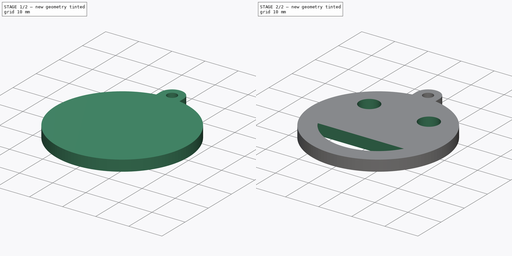
[diagram: build sequence overview — one tinted view per stage of 2, left to right]
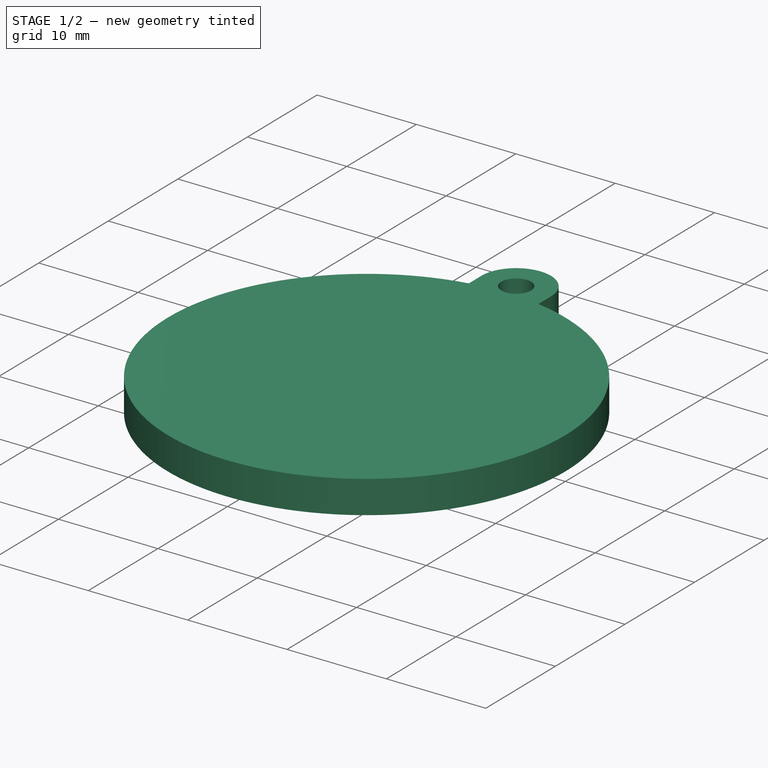
[diagram: stage 1 of 2 — iso view after this stage's code; geometry added in this stage tinted green]
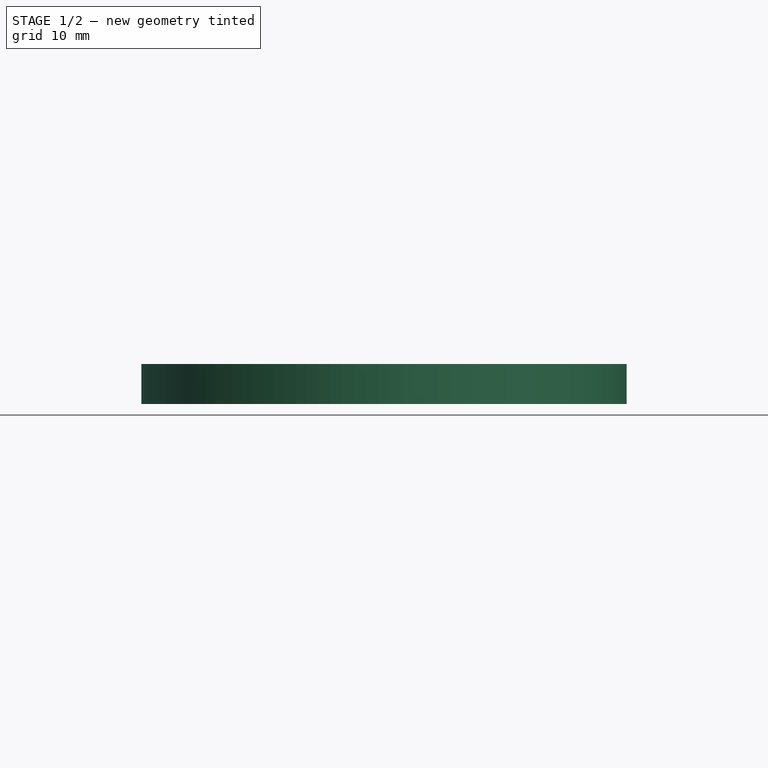
[diagram: stage 1 of 2 — front view after this stage's code; geometry added in this stage tinted green]
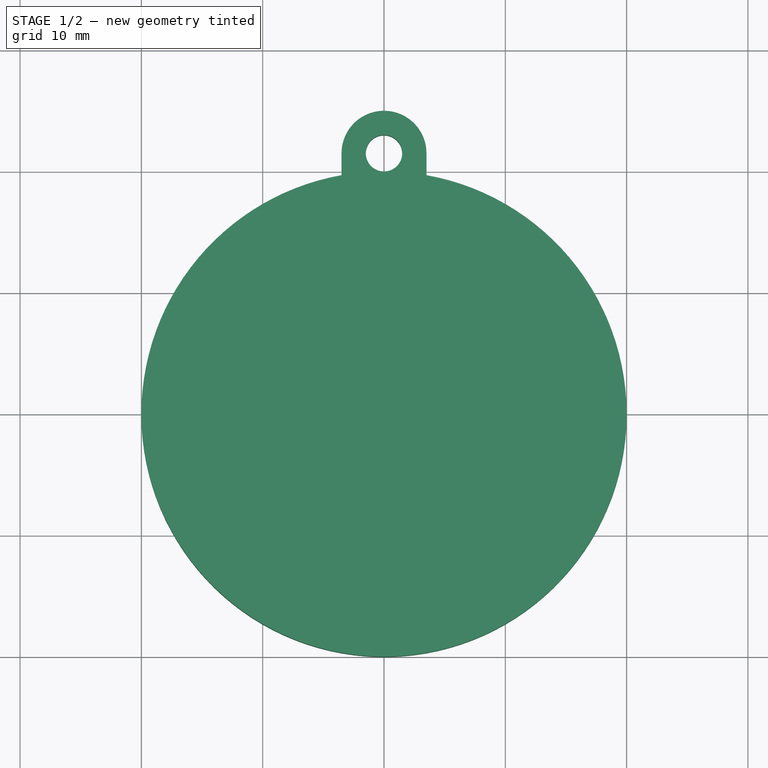
[diagram: stage 1 of 2 — top view after this stage's code; geometry added in this stage tinted green]
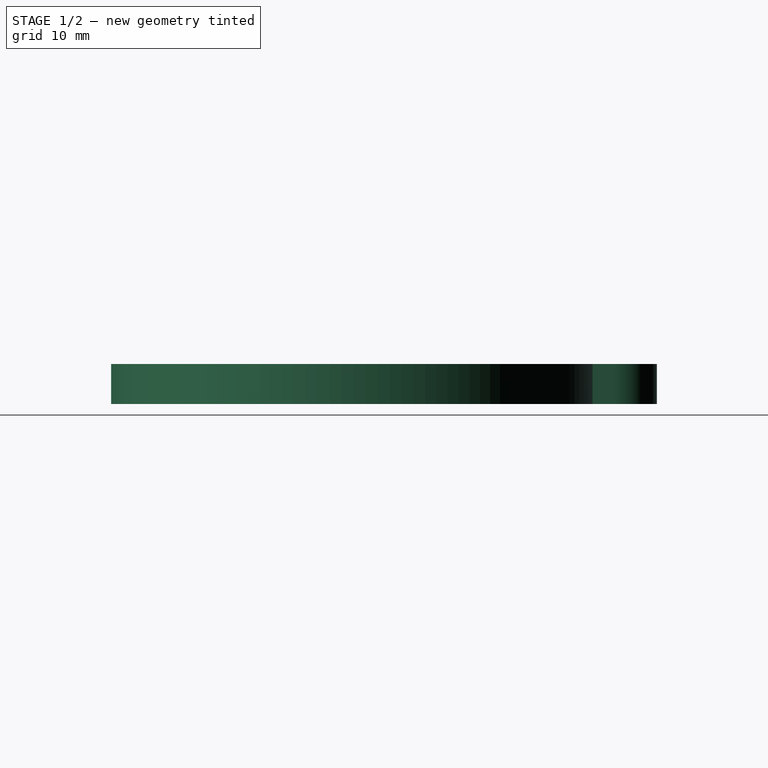
[diagram: stage 1 of 2 — right view after this stage's code; geometry added in this stage tinted green]
FCSTD DOCUMENT  (FreeCAD 0.16R6707 (Git))
Label: T5-ej2
License: CreativeCommons Attribution-ShareAlike
LicenseURL: http://creativecommons.org/licenses/by-sa/4.0/
objects: Sketcher::SketchObject×3, Part::Feature×2, PartDesign::Pocket×2, App::DocumentObjectGroup×2, Part::Extrusion×1, Part::FeaturePython×1
note: 11 computed .brp shape members not serialized (recipe doc carries the construction recipe); baked Part::Feature solids carry a one-line shape summary decoded from their .brp

FEATURE [Part::Feature] Sweep  label="key-ring-model-1"
  Placement = pos=(-1.2,30.2546,1.6391) rot=(0.333333,0.881918,0.333333;1.69612rad)
  shape: bbox 3.31 x 27.02 x 26.33 mm, 4 faces (baked)
FEATURE [Part::Feature] Cut  label="key-model-1"
  Placement = pos=(-5.46976,36.5266,0) rot=(0,0,1;0.517888rad)
  shape: bbox 49.82 x 36.6 x 2.3 mm, 44 faces (baked)
FEATURE [Sketcher::SketchObject] Sketch
  sketch-geometry (7):
    g0: Circle [constr] CenterX=0 CenterY=21.5 CenterZ=0 NormalX=0 NormalY=0 NormalZ=1 Radius=1.5
    g1: LineSegment [constr] StartX=-3.5 StartY=21.5 StartZ=0 EndX=3.5 EndY=21.5 EndZ=0
    g2: ArcOfCircle CenterX=0 CenterY=21.5 CenterZ=0 NormalX=0 NormalY=0 NormalZ=1 Radius=3.5 StartAngle=0 EndAngle=3.14159
    g3: LineSegment StartX=-3.5 StartY=21.5 StartZ=0 EndX=-3.5 EndY=19.6914 EndZ=0
    g4: LineSegment [constr] StartX=-3.5 StartY=19.6914 StartZ=0 EndX=3.5 EndY=19.6914 EndZ=0
    g5: LineSegment StartX=3.5 StartY=19.6914 StartZ=0 EndX=3.5 EndY=21.5 EndZ=0
    g6: ArcOfCircle CenterX=0 CenterY=0 CenterZ=0 NormalX=0 NormalY=0 NormalZ=1 Radius=20 StartAngle=1.7467 EndAngle=7.67808
  constraints (22):
    c: Radius(g0) = 1.5
    c: Horizontal(g1)
    c: Symmetric(g1,g1,g-2)
    c: Coincident(g2,g0)
    c: PointOnObject(g0,g-2)
    c: PointOnObject(g0,g1)
    c: Coincident(g2,g1)
    c: Coincident(g2,g1)
    c: Radius(g2) = 3.5
    c: DistanceY(g-1,g0) = 21.5
    c: Vertical(g3)
    c: Coincident(g3,g4)
    c: Horizontal(g4)
    c: Coincident(g4,g5)
    c: Vertical(g5)
    c: Coincident(g3,g1)
    c: Coincident(g5,g1)
    c: Coincident(g6,g-1)
    c: Radius(g6) = 20
    c: PointOnObject(g3,g6)
    c: PointOnObject(g6,g4)
    c: PointOnObject(g6,g4)
FEATURE [Part::Extrusion] Extrude  label="casino-chip"
  Base = -> Sketch
  Dir = (0,0,3.3)
  Solid = true
FEATURE [Sketcher::SketchObject] Sketch001
  Placement = pos=(0,0,3.3) rot=(0,0,1;0rad)
  Support = -> Extrude [Face6]
  sketch-geometry (1):
    g0: Circle CenterX=0 CenterY=21.5 CenterZ=0 NormalX=0 NormalY=0 NormalZ=1 Radius=1.5
  constraints (3):
    c: DistanceY(g-1,g0) = 21.5
    c: PointOnObject(g0,g-2)
    c: Radius(g0) = 1.5
FEATURE [PartDesign::Pocket] Pocket  label="drill"
  Length = 5
  Sketch = -> Sketch001
  Type = 1
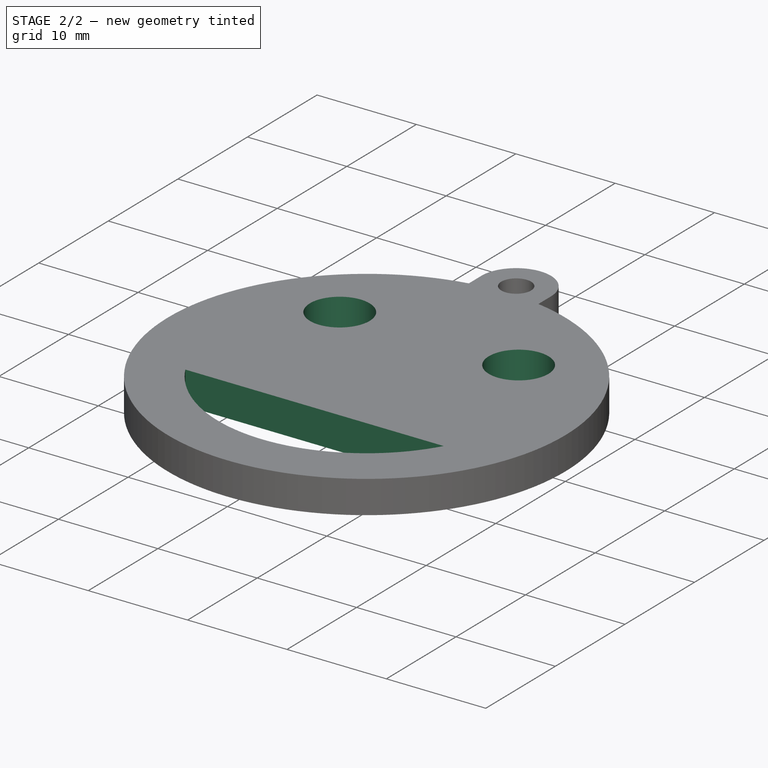
[diagram: stage 2 of 2 — iso view after this stage's code; geometry added in this stage tinted green]
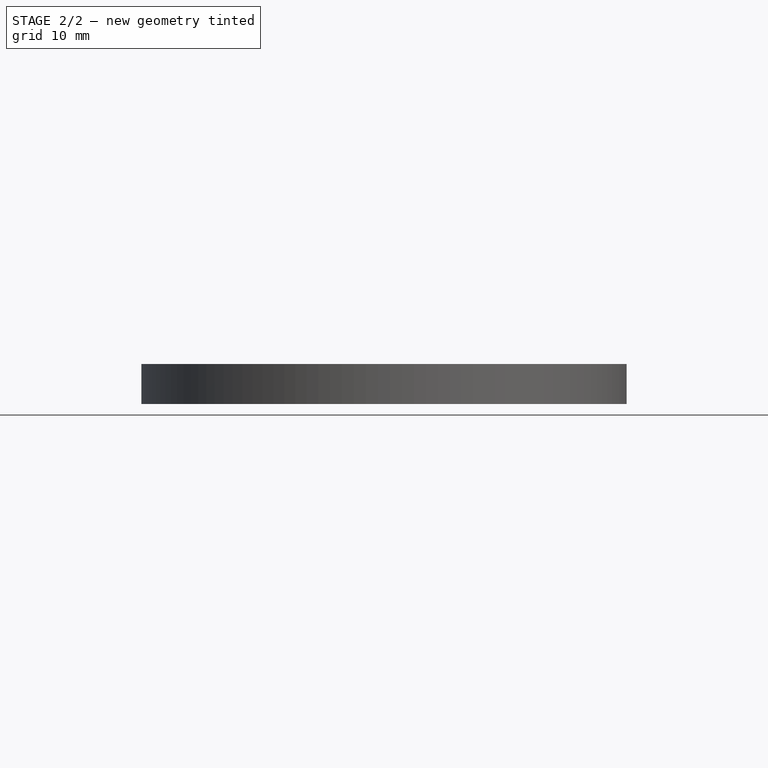
[diagram: stage 2 of 2 — front view after this stage's code; geometry added in this stage tinted green]
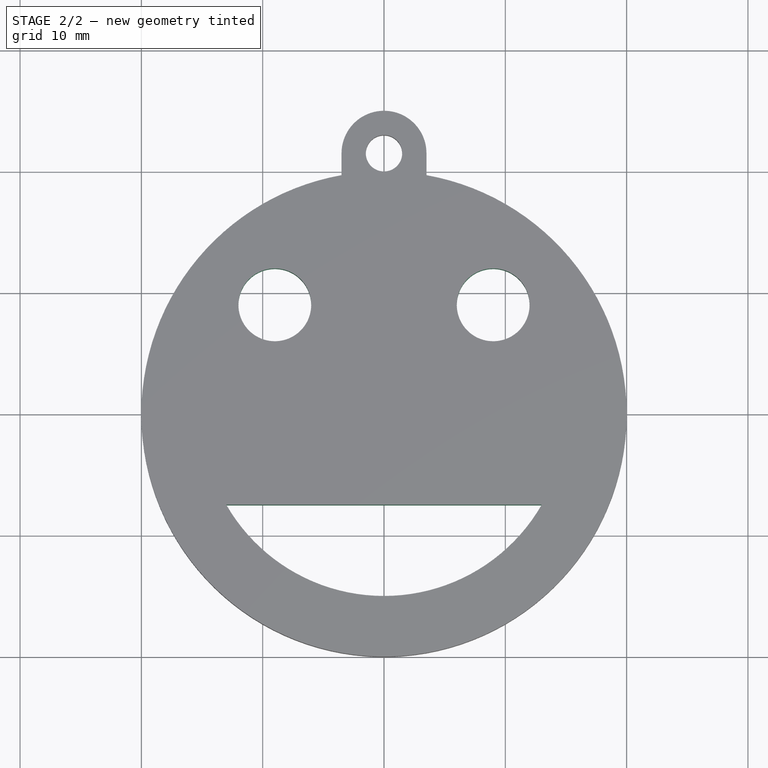
[diagram: stage 2 of 2 — top view after this stage's code; geometry added in this stage tinted green]
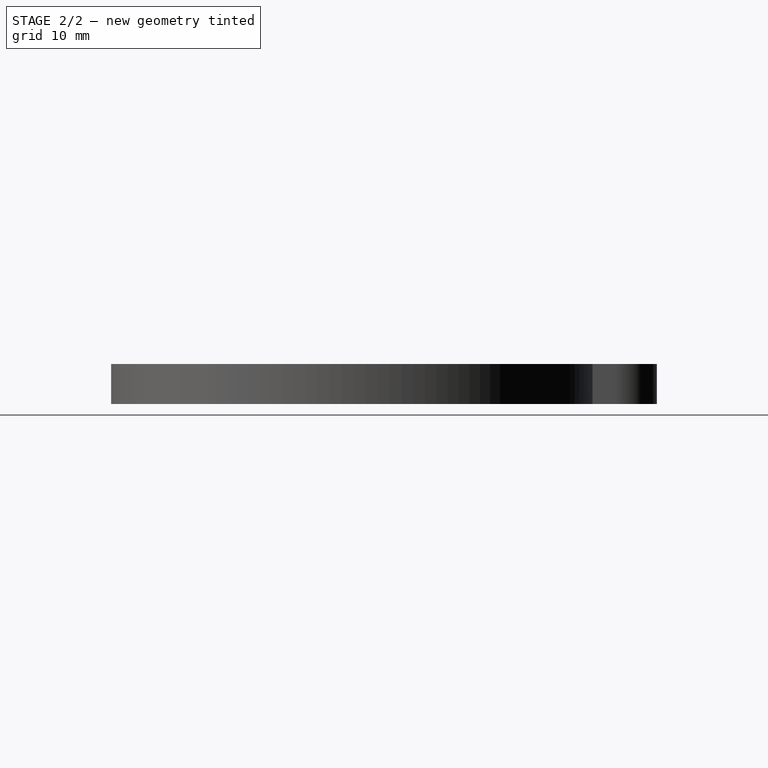
[diagram: stage 2 of 2 — right view after this stage's code; geometry added in this stage tinted green]
FEATURE [App::DocumentObjectGroup] Group001  label="Casino-chip-src"
  Group = -> [Sketch,Pocket,Extrude]
FEATURE [Part::FeaturePython] Clone  label="Clone-of-casino-chip"  # Draft clone (typed FeaturePython)
  Objects = -> [Pocket]
  Scale = (1,1,1)
FEATURE [Sketcher::SketchObject] Sketch002
  Placement = pos=(0,0,3.3) rot=(0,0,1;0rad)
  Support = -> Clone [Face5]
  sketch-geometry (4):
    g0: ArcOfCircle CenterX=0 CenterY=0 CenterZ=0 NormalX=0 NormalY=0 NormalZ=1 Radius=15 StartAngle=3.66391 EndAngle=5.76087
    g1: LineSegment StartX=-13 StartY=-7.48331 StartZ=0 EndX=13 EndY=-7.48331 EndZ=0
    g2: Circle CenterX=-9 CenterY=9 CenterZ=0 NormalX=0 NormalY=0 NormalZ=1 Radius=3
    g3: Circle CenterX=9 CenterY=9 CenterZ=0 NormalX=0 NormalY=0 NormalZ=1 Radius=3
  constraints (11):
    c: Coincident(g0,g-1)
    c: Coincident(g1,g0)
    c: Horizontal(g1)
    c: Coincident(g1,g0)
    c: Radius(g0) = 15
    c: Distance(g1) = 26
    c: Symmetric(g2,g3,g-2)
    c: Distance(g2,g3) = 18
    c: Radius(g2) = 3
    c: DistanceY(g-1,g2) = 9
    c: Equal(g3,g2)
FEATURE [PartDesign::Pocket] Pocket001
  Length = 5
  Sketch = -> Sketch002
  Type = 0
FEATURE [App::DocumentObjectGroup] Group  label="Assembly"
  Group = -> [Sweep,Cut,Clone,Pocket001]
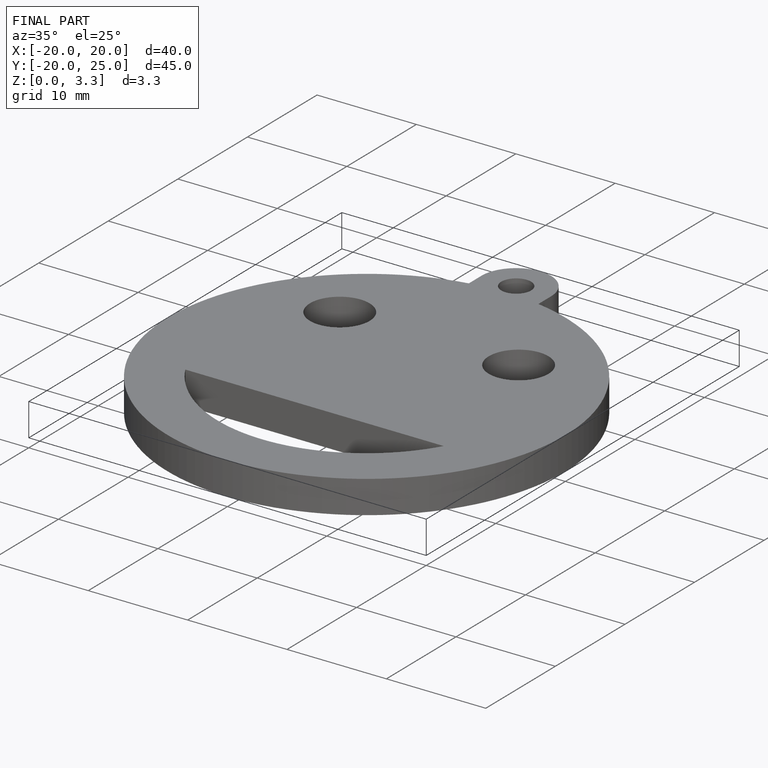
[diagram: finished part — iso view with bounding-box wireframe]
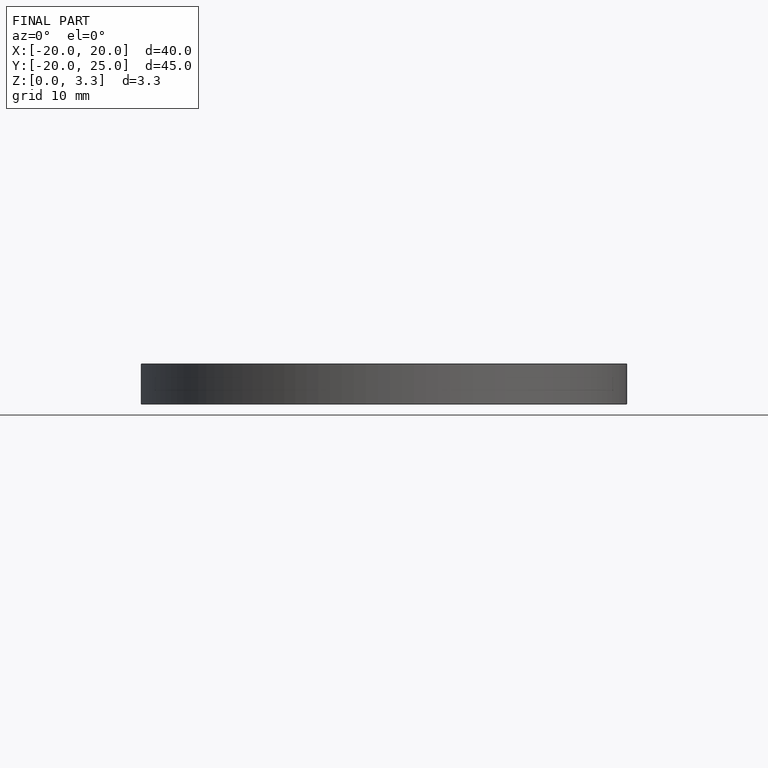
[diagram: finished part — front view with bounding-box wireframe]
